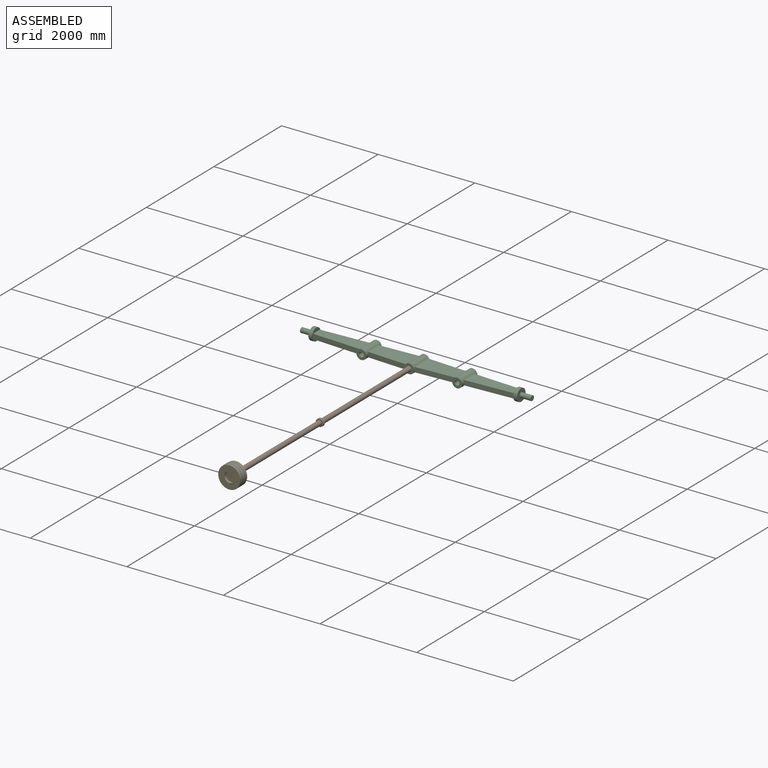
[diagram: assembled view]
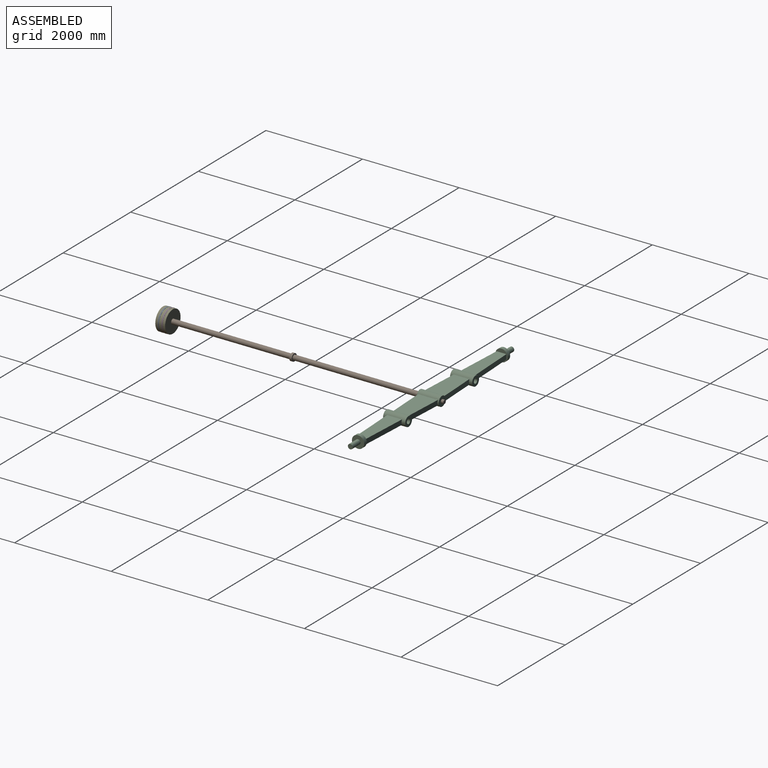
[diagram: assembled view, second angle]
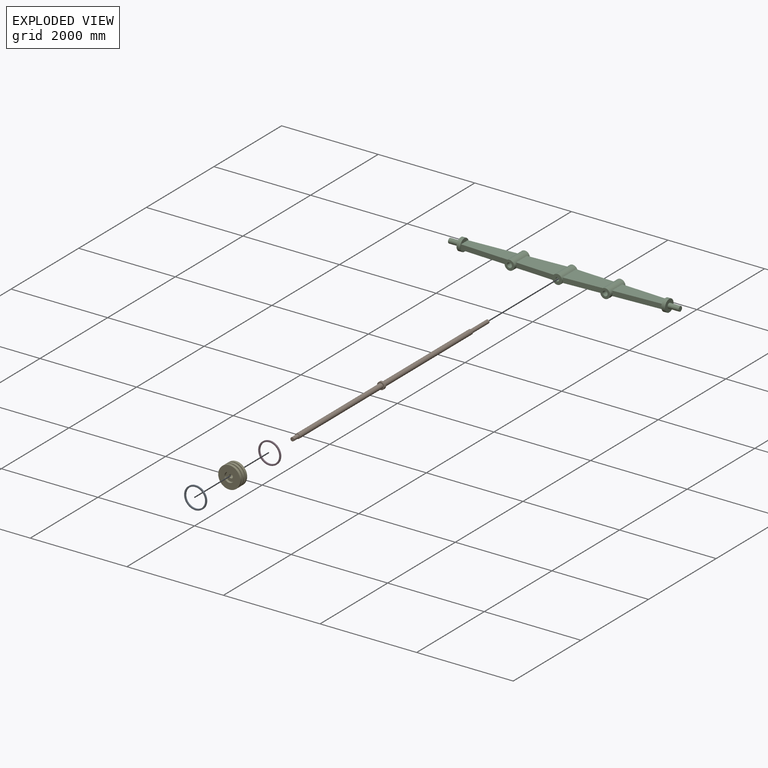
[diagram: exploded view]
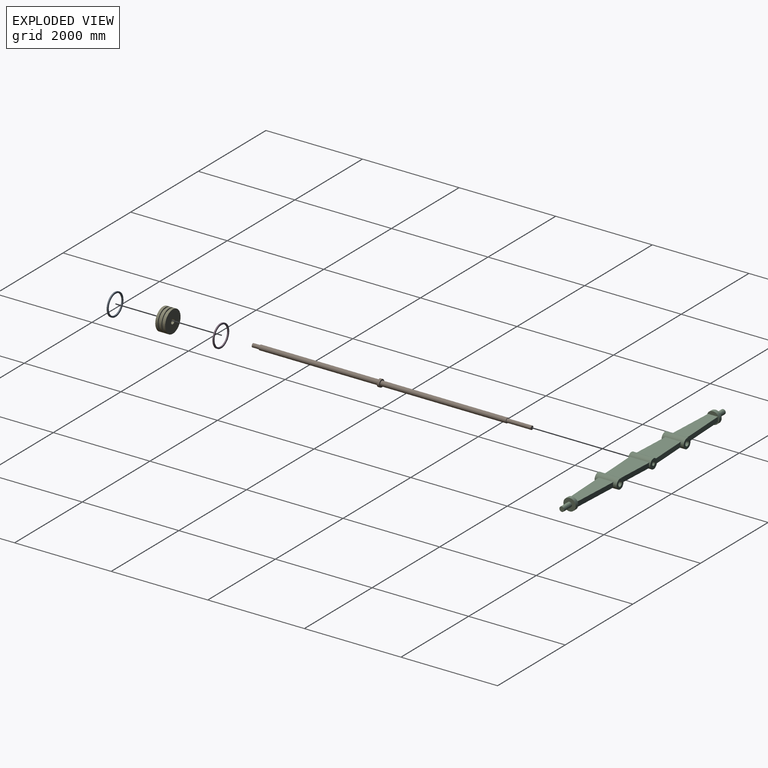
[diagram: exploded view, second angle]
ASSEMBLY  parts=5 mates=4
PART A: 6 faces, bbox 25.4x462.3x462.3 mm
  f0: cylinder r=203.2mm len=406.4mm, axis (-1,0,0), area 32412.8mm2, adj f2,f3,f4,f5
  f1: cylinder r=231.14mm len=462.28mm, axis (-1,0,0), area 36871.8mm2, adj f2,f3,f4,f5
  f2: plane 462.28x462.28mm, normal (1,0,0), area 38106.5mm2, adj f0,f1,f4,f5
  f3: plane 462.28x462.28mm, normal (-1,0,0), area 38106.6mm2, adj f0,f1,f4,f5
  f4: plane 28.93x25.4mm, normal (-0.62,0.79,0), area 905.3mm2, adj f0,f1,f2,f3
  f5: plane 29x25.4mm, normal (0.62,-0.79,0), area 905.5mm2, adj f0,f1,f2,f3
PART B: 17 faces, bbox 5778.5x152.4x165.1 mm
  f0: cylinder r=50.8mm len=2603.5mm, axis (-1,0,0), area 831000.3mm2, adj f1,f3
  f1: plane 101.6x101.6mm, normal (1,0,0), area 3547mm2, adj f0,f9
  f2: cylinder r=76.2mm len=152.4mm, axis (-1,0,0), area 23308.2mm2, adj f3,f4,f14,f15
  f3: plane 152.4x152.4mm, normal (1,0,0), area 10134.1mm2, adj f0,f2
  f4: plane 152.4x152.4mm, normal (-1,0,0), area 10134.1mm2, adj f2,f6
  f5: plane 101.6x101.6mm, normal (-1,0,0), area 3547mm2, adj f6,f7
  f6: cylinder r=50.8mm len=2463.8mm, axis (-1,0,0), area 786410mm2, adj f4,f5
  f7: cylinder r=38.1mm len=152.4mm, axis (1,0,0), area 36482.9mm2, adj f5,f8
  f8: plane 76.2x76.2mm, normal (-1,0,0), area 4560.4mm2, adj f7
  f9: cylinder r=38.1mm len=297.18mm, axis (-1,0,0), area 71141.7mm2, adj f1,f10
  f10: plane 76.2x76.2mm, normal (1,0,0), area 3mm2, adj f9,f11
  f11: cylinder r=38.09mm len=210.82mm, axis (-1,0,0), area 50451.2mm2, adj f10,f12
  f12: plane 76.17x76.17mm, normal (1,0,0), area 4557.3mm2, adj f11
  f13: plane 25.4x25.4mm, normal (0,0,-1), area 506.7mm2, adj f14
  f14: cylinder r=12.7mm len=25.4mm, axis (0,0,1), area 549.1mm2, adj f2,f13
  f15: cylinder r=12.7mm len=25.4mm, axis (0,0,1), area 549.1mm2, adj f2,f16
  f16: plane 25.4x25.4mm, normal (0,0,1), area 506.7mm2, adj f15
PART C: 46 faces, bbox 4775.2x457.2x254 mm
  f0: cylinder r=50.8mm len=228.6mm, axis (1,0,0), area 72965.9mm2, adj f1,f3
  f1: plane 101.6x101.6mm, normal (-1,0,0), area 8107.3mm2, adj f0
  f2: cylinder r=127mm len=254mm, axis (1,0,0), area 60804.9mm2, adj f3,f4
  f3: plane 254x254mm, normal (-1,0,0), area 42563.4mm2, adj f0,f2
  f4: plane 254x254mm, normal (1,0,0), area 30025.6mm2, adj f2,f42,f43,f44,f45
  f5: cylinder r=50.8mm len=228.6mm, axis (-1,0,0), area 72965.9mm2, adj f6,f9
  f6: plane 101.6x101.6mm, normal (1,0,0), area 8107.3mm2, adj f5
  f7: plane 254x254mm, normal (-1,0,0), area 30025.6mm2, adj f8,f15,f16,f17,f18
  f8: cylinder r=127mm len=254mm, axis (-1,0,0), area 60804.9mm2, adj f7,f9
  f9: plane 254x254mm, normal (1,0,0), area 42563.4mm2, adj f5,f8
  f10: plane 813.71x101.6mm, normal (-0.05,-1,0), area 80999.1mm2, adj f28,f31,f32,f33,f34,f39
  f11: plane 1.61x0.91mm, normal (0,1,0), area 0.7mm2, adj f13,f26,f28
  f12: plane 1.61x0.91mm, normal (0,-1,0), area 0.7mm2, adj f14,f25,f28
  f13: plane 814.62x406.4mm, normal (0,0,-1), area 297324.1mm2, adj f11,f20,f24,f25,f26,f28
  f14: plane 814.62x406.4mm, normal (0,0,1), area 297324.1mm2, adj f12,f20,f23,f25,f26,f28
  f15: plane 1004.21x101.6mm, normal (0.05,1,0), area 101224mm2, adj f7,f16,f17,f20
  f16: plane 1004.21x305.54mm, normal (0,0,1), area 255441.4mm2, adj f7,f15,f18,f20
  f17: plane 1004.21x305.54mm, normal (0,0,-1), area 255441.4mm2, adj f7,f15,f18,f20
  f18: plane 1004.21x101.6mm, normal (0.05,-1,0), area 101224mm2, adj f7,f16,f17,f20
  f19: cylinder r=50.8mm len=457.2mm, axis (0,1,0), area 145931.8mm2, adj f21,f22
  f20: cylinder r=101.6mm len=457.2mm, axis (0,1,0), area 224939.4mm2, adj f13,f14,f15,f16,f17,f18,f21,f22
  f21: plane 203.2x203.2mm, normal (0,-1,0), area 24322mm2, adj f19,f20
  f22: plane 203.2x203.2mm, normal (0,1,0), area 24322mm2, adj f19,f20
  f23: plane 1.61x0.91mm, normal (0,1,0), area 0.7mm2, adj f14,f26,f28
  f24: plane 1.61x0.91mm, normal (0,-1,0), area 0.7mm2, adj f13,f25,f28
  f25: plane 813.71x101.6mm, normal (0.05,-1,0), area 80999.1mm2, adj f12,f13,f14,f20,f24,f28
  f26: plane 813.71x101.6mm, normal (0.05,1,0), area 80999.1mm2, adj f11,f13,f14,f20,f23,f28
  f27: cylinder r=38.1mm len=457.2mm, axis (0,1,0), area 109448.8mm2, adj f29,f30
  f28: cylinder r=101.6mm len=457.2mm, axis (0,1,0), area 205561.9mm2, adj f10,f11,f12,f13,f14,f23,f24,f25
  f29: plane 203.2x203.2mm, normal (0,-1,0), area 27868.9mm2, adj f27,f28
  f30: plane 203.2x203.2mm, normal (0,1,0), area 27868.9mm2, adj f27,f28
  f31: plane 814.62x406.4mm, normal (0,0,1), area 297324.1mm2, adj f10,f28,f32,f35,f37,f39
  f32: plane 1.61x0.91mm, normal (0,-1,0), area 0.7mm2, adj f10,f28,f31
  f33: plane 814.62x406.4mm, normal (0,0,-1), area 297324.1mm2, adj f10,f28,f34,f35,f36,f39
  f34: plane 1.61x0.91mm, normal (0,-1,0), area 0.7mm2, adj f10,f28,f33
  f35: plane 813.71x101.6mm, normal (-0.05,1,0), area 80999.1mm2, adj f28,f31,f33,f36,f37,f39
  f36: plane 1.61x0.91mm, normal (0,1,0), area 0.7mm2, adj f28,f33,f35
  f37: plane 1.61x0.91mm, normal (0,1,0), area 0.7mm2, adj f28,f31,f35
  f38: cylinder r=50.8mm len=457.2mm, axis (0,1,0), area 145931.8mm2, adj f40,f41
  f39: cylinder r=101.6mm len=457.2mm, axis (0,1,0), area 224939.4mm2, adj f10,f31,f33,f35,f40,f41,f42,f43
  f40: plane 203.2x203.2mm, normal (0,-1,0), area 24322mm2, adj f38,f39
  f41: plane 203.2x203.2mm, normal (0,1,0), area 24322mm2, adj f38,f39
  f42: plane 1004.21x101.6mm, normal (-0.05,-1,0), area 101224mm2, adj f4,f39,f44,f45
  f43: plane 1004.21x101.6mm, normal (-0.05,1,0), area 101224mm2, adj f4,f39,f44,f45
  f44: plane 1004.21x305.54mm, normal (0,0,-1), area 255441.4mm2, adj f4,f39,f42,f43
  f45: plane 1004.21x305.54mm, normal (0,0,1), area 255441.4mm2, adj f4,f39,f42,f43
PART D: same geometry as A
PART E: 16 faces, bbox 203.2x457.2x457.2 mm
  f0: cylinder r=203.2mm len=406.4mm, axis (1,0,0), area 32429.3mm2, adj f2,f8
  f1: cylinder r=228.6mm len=457.2mm, axis (-1,0,0), area 72965.9mm2, adj f2,f3
  f2: plane 457.2x457.2mm, normal (1,0,0), area 34456.1mm2, adj f0,f1
  f3: plane 457.2x457.2mm, normal (-1,0,0), area 156065.9mm2, adj f1,f4
  f4: cylinder r=50.8mm len=101.6mm, axis (-1,0,0), area 16214.6mm2, adj f3,f5
  f5: plane 101.6x101.6mm, normal (-1,0,0), area 3547mm2, adj f4,f15
  f6: cylinder r=228.6mm len=457.2mm, axis (-1,0,0), area 72965.9mm2, adj f7,f8
  f7: plane 457.2x457.2mm, normal (1,0,0), area 34456.1mm2, adj f6,f9
  f8: plane 457.2x457.2mm, normal (-1,0,0), area 34456.1mm2, adj f0,f6
  f9: cylinder r=203.2mm len=406.4mm, axis (1,0,0), area 32429.3mm2, adj f7,f12
  f10: cylinder r=228.6mm len=457.2mm, axis (-1,0,0), area 72965.9mm2, adj f11,f12
  f11: plane 457.2x457.2mm, normal (1,0,0), area 131743.9mm2, adj f10,f13
  f12: plane 457.2x457.2mm, normal (-1,0,0), area 34456.1mm2, adj f9,f10
  f13: cylinder r=101.6mm len=203.2mm, axis (1,0,0), area 32429.3mm2, adj f11,f14
  f14: plane 203.2x203.2mm, normal (1,0,0), area 27868.9mm2, adj f13,f15
  f15: cylinder r=38.1mm len=101.6mm, axis (-1,0,0), area 24322mm2, adj f5,f14
PLACE A rot(axis=(0.58,0.58,0.58),120deg) t=(7791.63,-24898.88,-6610.74)mm
PLACE B rot(axis=(-0.58,-0.58,0.58),120deg) t=(7283.63,-27489.68,2761.86)mm
PLACE C t=(-20199.17,-2737.38,-1987.94)mm
PLACE D rot(axis=(0.58,0.58,0.58),120deg) t=(7791.63,-24822.68,-6610.74)mm
PLACE E rot(axis=(0.71,-0.71,0),180deg) t=(12185.83,20592.52,-1987.94)mm
MATE fastened A.f0 <-> E.f1  axis (0,1,0) through (7791.63,-2597.68,-1987.94)mm
MATE fastened C.f28 <-> B.f0  axis (0,-1,0) through (7791.63,2647.42,-1987.94)mm
MATE fastened E.f1 <-> B.f0  axis (0,1,0) through (7791.63,-2470.68,-1987.94)mm
MATE fastened D.f0 <-> E.f1  axis (0,1,0) through (7791.63,-2521.48,-1987.94)mm
